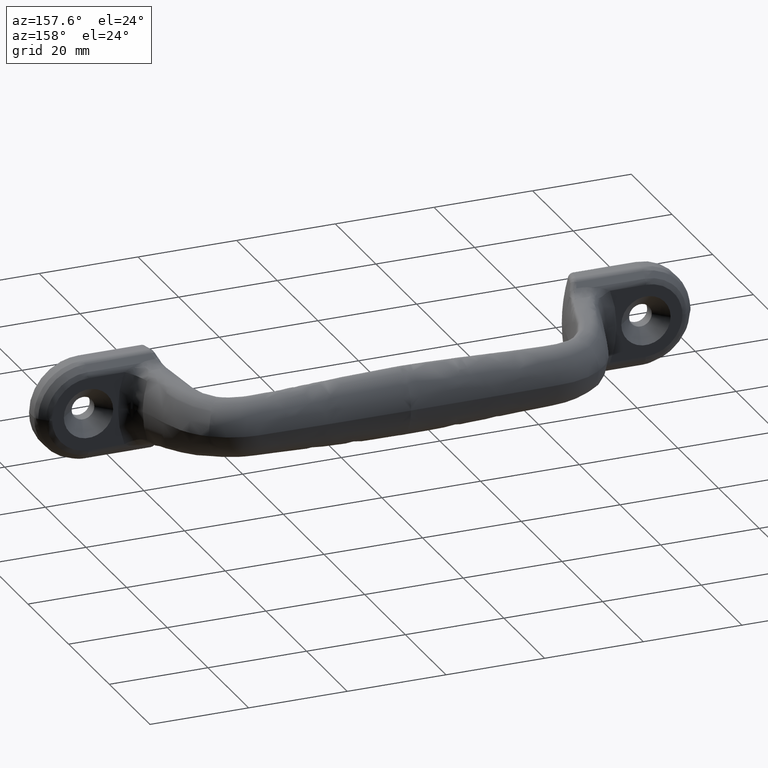
[diagram: clean part render]
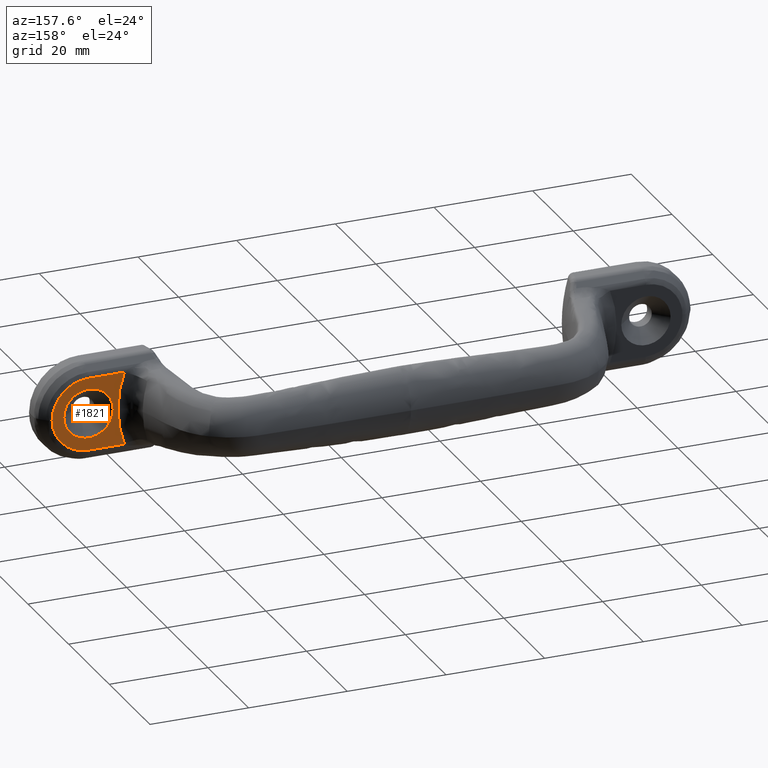
[diagram: same view with one face highlighted and labeled with its STEP entity id]
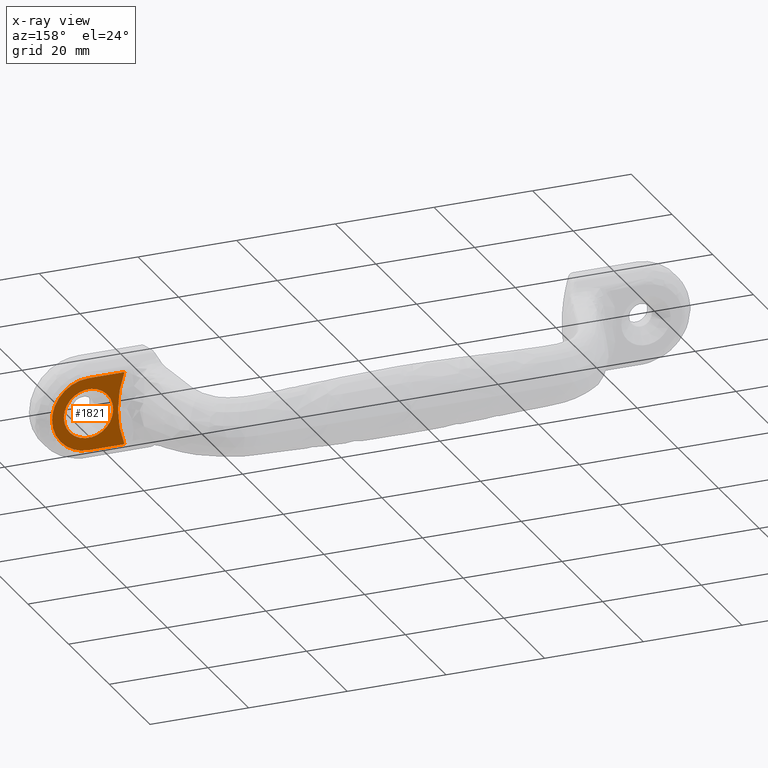
[diagram: x-ray of the same camera — body ghosted, the highlighted face saturated]
A machine part, auxiliary view. The second image highlights one B-rep face of the part: STEP entity #1821.
The next image is the same camera in x-ray: the body ghosted, the highlighted face saturated — about 0% of this face is hidden behind the body in this view.
In plain terms, the highlighted planar face has unit normal (0, 1, 0).
Its self-contained STEP definition (entity closure, byte-faithful):
#42=PLANE('',#1884);
#75=LINE('',#15127,#127);
#76=LINE('',#16140,#128);
#77=LINE('',#16750,#129);
#78=LINE('',#16860,#130);
#127=VECTOR('',#1982,0.0620688628684279);
#128=VECTOR('',#1983,0.0620688628684283);
#129=VECTOR('',#1986,7.27121803988808);
#130=VECTOR('',#1987,7.27121804460971);
#293=B_SPLINE_CURVE_WITH_KNOTS('',3,(#15129,#15130,#15131,#15132,#15133,
#15134,#15135,#15136,#15137,#15138,#15139,#15140,#15141,#15142,#15143,#15144,
#15145,#15146,#15147,#15148,#15149,#15150,#15151,#15152,#15153,#15154,#15155,
#15156,#15157,#15158,#15159,#15160,#15161,#15162,#15163,#15164,#15165,#15166,
#15167,#15168,#15169,#15170,#15171,#15172,#15173,#15174,#15175,#15176,#15177),
 .UNSPECIFIED.,.F.,.F.,(4,3,3,3,3,3,3,3,3,3,3,3,3,3,3,3,4),(0.,0.0185041713225097,
0.0556354328315497,0.0954989764310041,0.124999999964289,0.131733220072823,
0.165305748314338,0.246093749929689,0.249999999928572,0.260306895702468,
0.468749999865934,0.499999999856984,0.758737155232292,0.898763433290219,
0.932708410075183,0.966319131039416,0.999999999713804),.UNSPECIFIED.);
#308=B_SPLINE_CURVE_WITH_KNOTS('',3,(#16106,#16107,#16108,#16109,#16110,
#16111,#16112,#16113,#16114,#16115,#16116,#16117,#16118,#16119,#16120,#16121,
#16122,#16123,#16124,#16125,#16126,#16127,#16128,#16129,#16130,#16131,#16132,
#16133,#16134,#16135,#16136,#16137,#16138,#16139),.UNSPECIFIED.,.F.,.F.,
(4,3,3,3,3,3,3,3,3,3,3,4),(0.,0.0168691644288512,0.0489990711802318,0.0840030308831241,
0.119458514656588,0.15473895051435,0.260260710457776,0.753397035694499,
0.894168888157413,0.929194940019406,0.964317406343073,0.999999999694593),
 .UNSPECIFIED.);
#321=B_SPLINE_CURVE_WITH_KNOTS('',3,(#16752,#16753,#16754,#16755,#16756,
#16757,#16758,#16759,#16760,#16761,#16762,#16763,#16764,#16765,#16766,#16767,
#16768,#16769,#16770,#16771,#16772,#16773,#16774,#16775,#16776,#16777,#16778,
#16779,#16780,#16781,#16782,#16783,#16784,#16785,#16786,#16787,#16788,#16789,
#16790,#16791,#16792,#16793,#16794,#16795,#16796,#16797,#16798,#16799,#16800,
#16801,#16802,#16803),.UNSPECIFIED.,.F.,.F.,(4,3,3,3,3,3,3,3,3,3,3,3,3,
3,3,3,3,4),(0.000833106760737374,0.00490726464856456,0.0147996396251551,
0.0447172937709635,0.0655590373653386,0.0865032987265728,0.250000068000261,
0.32236820171071,0.468750048166831,0.500000045333484,0.621562680765731,
0.687500028333432,0.750000022666747,0.876464520168464,0.951449996910995,
0.962121846081665,0.983403426761849,1.),.UNSPECIFIED.);
#322=B_SPLINE_CURVE_WITH_KNOTS('',3,(#16805,#16806,#16807,#16808,#16809,
#16810,#16811,#16812,#16813,#16814,#16815,#16816,#16817,#16818,#16819,#16820,
#16821,#16822,#16823,#16824,#16825,#16826,#16827,#16828,#16829,#16830,#16831,
#16832,#16833,#16834,#16835,#16836,#16837,#16838,#16839,#16840,#16841,#16842,
#16843,#16844,#16845,#16846,#16847,#16848,#16849,#16850,#16851,#16852,#16853,
#16854,#16855,#16856,#16857,#16858,#16859),.UNSPECIFIED.,.F.,.F.,(4,3,3,
3,3,3,3,3,3,3,3,3,3,3,3,3,3,3,4),(0.,0.0166002639515077,0.0378731155142542,
0.0485370083063361,0.1234885083687,0.124999988583741,0.187499982875611,
0.249999977167482,0.378508557630454,0.46874995718902,0.499999954334946,
0.677517336115743,0.90351836781476,0.914151571758031,0.934953611163284,
0.955583810999677,0.985242921622856,0.995097704780354,0.99916714172912),
 .UNSPECIFIED.);
#457=FACE_BOUND('',#624,.T.);
#521=FACE_OUTER_BOUND('',#623,.T.);
#623=EDGE_LOOP('',(#1559,#1560,#1561,#1562,#1563,#1564,#1565,#1566));
#624=EDGE_LOOP('',(#1567));
#662=CIRCLE('',#1863,5.);
#670=VERTEX_POINT('',#2047);
#802=VERTEX_POINT('',#15118);
#803=VERTEX_POINT('',#15126);
#804=VERTEX_POINT('',#15128);
#814=VERTEX_POINT('',#16094);
#815=VERTEX_POINT('',#16105);
#825=VERTEX_POINT('',#16749);
#826=VERTEX_POINT('',#16751);
#827=VERTEX_POINT('',#16804);
#875=EDGE_CURVE('',#670,#670,#662,.T.);
#1057=EDGE_CURVE('',#803,#802,#75,.T.);
#1058=EDGE_CURVE('',#804,#803,#293,.T.);
#1073=EDGE_CURVE('',#814,#815,#308,.T.);
#1074=EDGE_CURVE('',#815,#802,#76,.T.);
#1087=EDGE_CURVE('',#814,#825,#77,.T.);
#1088=EDGE_CURVE('',#825,#826,#321,.T.);
#1089=EDGE_CURVE('',#826,#827,#322,.T.);
#1090=EDGE_CURVE('',#827,#804,#78,.T.);
#1559=ORIENTED_EDGE('',*,*,#1073,.F.);
#1560=ORIENTED_EDGE('',*,*,#1087,.T.);
#1561=ORIENTED_EDGE('',*,*,#1088,.T.);
#1562=ORIENTED_EDGE('',*,*,#1089,.T.);
#1563=ORIENTED_EDGE('',*,*,#1090,.T.);
#1564=ORIENTED_EDGE('',*,*,#1058,.T.);
#1565=ORIENTED_EDGE('',*,*,#1057,.T.);
#1566=ORIENTED_EDGE('',*,*,#1074,.F.);
#1567=ORIENTED_EDGE('',*,*,#875,.T.);
#1821=ADVANCED_FACE('',(#521,#457),#42,.T.);
#1863=AXIS2_PLACEMENT_3D('',#2048,#1913,#1914);
#1884=AXIS2_PLACEMENT_3D('',#16748,#1984,#1985);
#1913=DIRECTION('center_axis',(0.,-1.,0.));
#1914=DIRECTION('ref_axis',(0.999999395314834,0.,0.00109971358366082));
#1982=DIRECTION('',(-0.000448015092091155,0.,0.999999899641234));
#1983=DIRECTION('',(-0.000448015092091155,0.,-0.999999899641234));
#1984=DIRECTION('center_axis',(0.,1.,0.));
#1985=DIRECTION('ref_axis',(0.,0.,1.));
#1986=DIRECTION('',(1.,0.,0.));
#1987=DIRECTION('',(-1.,0.,0.));
#2047=CARTESIAN_POINT('',(511.499934887743,-71.5,0.129766202871977));
#2048=CARTESIAN_POINT('Origin',(506.499937911169,-71.5,0.124267634953673));
#15118=CARTESIAN_POINT('',(500.521181632373,-71.5,0.));
#15126=CARTESIAN_POINT('',(500.521209439832,-71.5,-0.0620688566394208));
#15127=CARTESIAN_POINT('',(500.521209439787,-71.5,-0.0620688558535731));
#15128=CARTESIAN_POINT('',(499.216150672765,-71.5000055036741,-7.38678069944423));
#15129=CARTESIAN_POINT('Ctrl Pts',(499.220260768411,-71.4999925230994,-7.37614538889611));
#15130=CARTESIAN_POINT('Ctrl Pts',(499.236893615072,-71.4999947404254,-7.33628171961173));
#15131=CARTESIAN_POINT('Ctrl Pts',(499.259140963759,-71.4999961853844,-7.27977983028135));
#15132=CARTESIAN_POINT('Ctrl Pts',(499.277473809222,-71.4999971499502,-7.23232016536948));
#15133=CARTESIAN_POINT('Ctrl Pts',(499.314261280935,-71.4999990854893,-7.13708557213859));
#15134=CARTESIAN_POINT('Ctrl Pts',(499.336816666026,-71.4999993660644,-7.07432136734971));
#15135=CARTESIAN_POINT('Ctrl Pts',(499.361682430598,-71.4999996373762,-7.00404908206117));
#15136=CARTESIAN_POINT('Ctrl Pts',(499.388377927866,-71.4999999286523,-6.92860585189375));
#15137=CARTESIAN_POINT('Ctrl Pts',(499.417450183042,-71.4999999706129,-6.84519850282074));
#15138=CARTESIAN_POINT('Ctrl Pts',(499.446741501301,-71.4999999890252,-6.7583617059303));
#15139=CARTESIAN_POINT('Ctrl Pts',(499.468418547324,-71.5000000026513,-6.6940981167632));
#15140=CARTESIAN_POINT('Ctrl Pts',(499.490111175772,-71.5,-6.62820603726764));
#15141=CARTESIAN_POINT('Ctrl Pts',(499.512928480829,-71.5,-6.55734648919316));
#15142=CARTESIAN_POINT('Ctrl Pts',(499.518136230216,-71.5,-6.54117373052808));
#15143=CARTESIAN_POINT('Ctrl Pts',(499.523344628576,-71.5,-6.52493128689928));
#15144=CARTESIAN_POINT('Ctrl Pts',(499.528563108584,-71.5,-6.50859351665894));
#15145=CARTESIAN_POINT('Ctrl Pts',(499.554582986833,-71.5,-6.42713171324903));
#15146=CARTESIAN_POINT('Ctrl Pts',(499.580861754413,-71.5,-6.34328210219355));
#15147=CARTESIAN_POINT('Ctrl Pts',(499.607022303003,-71.5,-6.2577818275993));
#15148=CARTESIAN_POINT('Ctrl Pts',(499.669974322183,-71.5,-6.05203633615633));
#15149=CARTESIAN_POINT('Ctrl Pts',(499.732222982691,-71.5,-5.83686094462508));
#15150=CARTESIAN_POINT('Ctrl Pts',(499.793772875689,-71.5,-5.6087464713112));
#15151=CARTESIAN_POINT('Ctrl Pts',(499.796748927388,-71.5,-5.5977167126427));
#15152=CARTESIAN_POINT('Ctrl Pts',(499.800196172251,-71.4999999999929,-5.58489091833627));
#15153=CARTESIAN_POINT('Ctrl Pts',(499.802692832112,-71.4999999999931,-5.5755759903231));
#15154=CARTESIAN_POINT('Ctrl Pts',(499.809280432237,-71.4999999999934,-5.55099794431975));
#15155=CARTESIAN_POINT('Ctrl Pts',(499.815823119839,-71.4999999999937,-5.5264050136222));
#15156=CARTESIAN_POINT('Ctrl Pts',(499.822321325063,-71.499999999994,-5.5017962524856));
#15157=CARTESIAN_POINT('Ctrl Pts',(499.953738785579,-71.5000000000001,-5.00411715749359));
#15158=CARTESIAN_POINT('Ctrl Pts',(500.067002300038,-71.4999999999997,-4.49996582001297));
#15159=CARTESIAN_POINT('Ctrl Pts',(500.162038879295,-71.4999999999447,-3.98938105539846));
#15160=CARTESIAN_POINT('Ctrl Pts',(500.176286858919,-71.4999999999364,-3.91283367354254));
#15161=CARTESIAN_POINT('Ctrl Pts',(500.190429452439,-71.4999999999452,-3.8344004893083));
#15162=CARTESIAN_POINT('Ctrl Pts',(500.203551895823,-71.4999999999483,-3.75930356475012));
#15163=CARTESIAN_POINT('Ctrl Pts',(500.312200333383,-71.4999999999737,-3.13753189616828));
#15164=CARTESIAN_POINT('Ctrl Pts',(500.391885581144,-71.4999999999871,-2.52222844295426));
#15165=CARTESIAN_POINT('Ctrl Pts',(500.445581308252,-71.4999999999937,-1.89070250374391));
#15166=CARTESIAN_POINT('Ctrl Pts',(500.47464096458,-71.4999999999974,-1.54892620711426));
#15167=CARTESIAN_POINT('Ctrl Pts',(500.4959438965,-71.4999999999989,-1.20244875053218));
#15168=CARTESIAN_POINT('Ctrl Pts',(500.508328710507,-71.4999999999996,-0.843839958274151));
#15169=CARTESIAN_POINT('Ctrl Pts',(500.511331020001,-71.4999999999997,-0.756906510517674));
#15170=CARTESIAN_POINT('Ctrl Pts',(500.513804768648,-71.4999999999998,-0.669249599752155));
#15171=CARTESIAN_POINT('Ctrl Pts',(500.515724918914,-71.4999999999999,-0.581785745906542));
#15172=CARTESIAN_POINT('Ctrl Pts',(500.51762616148,-71.5,-0.495183147687544));
#15173=CARTESIAN_POINT('Ctrl Pts',(500.518984141758,-71.5,-0.408779883546288));
#15174=CARTESIAN_POINT('Ctrl Pts',(500.51985009542,-71.5,-0.321873297705523));
#15175=CARTESIAN_POINT('Ctrl Pts',(500.520717856382,-71.5,-0.234785332298382));
#15176=CARTESIAN_POINT('Ctrl Pts',(500.521090127741,-71.5,-0.147165554599191));
#15177=CARTESIAN_POINT('Ctrl Pts',(500.521209439786,-71.5,-0.0620688566393566));
#16094=CARTESIAN_POINT('',(499.216132479807,-71.5000055558255,7.38682478552348));
#16105=CARTESIAN_POINT('',(500.521209439832,-71.5,0.0620688566394211));
#16106=CARTESIAN_POINT('Ctrl Pts',(499.220260768412,-71.4999925230994,7.37614538889631));
#16107=CARTESIAN_POINT('Ctrl Pts',(499.243766716277,-71.5000063641938,7.33507636524897));
#16108=CARTESIAN_POINT('Ctrl Pts',(499.263715086811,-71.5,7.28285022555765));
#16109=CARTESIAN_POINT('Ctrl Pts',(499.281867447292,-71.5,7.23391343311121));
#16110=CARTESIAN_POINT('Ctrl Pts',(499.316441397415,-71.5,7.14070581843371));
#16111=CARTESIAN_POINT('Ctrl Pts',(499.33874320259,-71.5,7.07585191370177));
#16112=CARTESIAN_POINT('Ctrl Pts',(499.363212407966,-71.5,7.00458036223692));
#16113=CARTESIAN_POINT('Ctrl Pts',(499.389870408737,-71.5,6.92693349775199));
#16114=CARTESIAN_POINT('Ctrl Pts',(499.419100904448,-71.5,6.84166950572905));
#16115=CARTESIAN_POINT('Ctrl Pts',(499.446952062383,-71.5,6.75843191184488));
#16116=CARTESIAN_POINT('Ctrl Pts',(499.475162478765,-71.5,6.67412061722702));
#16117=CARTESIAN_POINT('Ctrl Pts',(499.501957743077,-71.5,6.59188833586534));
#16118=CARTESIAN_POINT('Ctrl Pts',(499.528563108584,-71.5,6.50859351665894));
#16119=CARTESIAN_POINT('Ctrl Pts',(499.555037120255,-71.5,6.42570993382387));
#16120=CARTESIAN_POINT('Ctrl Pts',(499.581323103599,-71.5,6.34177427899454));
#16121=CARTESIAN_POINT('Ctrl Pts',(499.607022303003,-71.5,6.25778182759928));
#16122=CARTESIAN_POINT('Ctrl Pts',(499.683887134301,-71.5,6.00656522333386));
#16123=CARTESIAN_POINT('Ctrl Pts',(499.755502750292,-71.5,5.75484053187741));
#16124=CARTESIAN_POINT('Ctrl Pts',(499.822321612348,-71.5,5.50179632842148));
#16125=CARTESIAN_POINT('Ctrl Pts',(500.134587140412,-71.5,4.31924129255392));
#16126=CARTESIAN_POINT('Ctrl Pts',(500.34209221308,-71.5,3.10786829357114));
#16127=CARTESIAN_POINT('Ctrl Pts',(500.445581592611,-71.5,1.89070252787435));
#16128=CARTESIAN_POINT('Ctrl Pts',(500.475123913712,-71.5,1.54324753252529));
#16129=CARTESIAN_POINT('Ctrl Pts',(500.496190125877,-71.5,1.19532049185088));
#16130=CARTESIAN_POINT('Ctrl Pts',(500.508328731638,-71.5,0.843839959009589));
#16131=CARTESIAN_POINT('Ctrl Pts',(500.511348990499,-71.5,0.756386571443895));
#16132=CARTESIAN_POINT('Ctrl Pts',(500.513816554079,-71.5,0.668713192285514));
#16133=CARTESIAN_POINT('Ctrl Pts',(500.515724925127,-71.5,0.581785746242174));
#16134=CARTESIAN_POINT('Ctrl Pts',(500.517638549253,-71.5,0.494619019364442));
#16135=CARTESIAN_POINT('Ctrl Pts',(500.518989898088,-71.5,0.408202337839338));
#16136=CARTESIAN_POINT('Ctrl Pts',(500.519850096192,-71.5,0.321873299014886));
#16137=CARTESIAN_POINT('Ctrl Pts',(500.520724012588,-71.5,0.234167499586879));
#16138=CARTESIAN_POINT('Ctrl Pts',(500.521090987756,-71.5,0.146552162740348));
#16139=CARTESIAN_POINT('Ctrl Pts',(500.521209439786,-71.5,0.0620688566393569));
#16140=CARTESIAN_POINT('',(500.521181632,-71.5,0.));
#16748=CARTESIAN_POINT('Origin',(499.138892509,-71.5,-7.467430967));
#16749=CARTESIAN_POINT('',(506.489581148702,-71.5,7.37878200431356));
#16750=CARTESIAN_POINT('',(506.5534626985,-71.5,7.37867965386549));
#16751=CARTESIAN_POINT('',(513.87868554405,-71.5000000003804,1.25084677019451E-8));
#16752=CARTESIAN_POINT('Ctrl Pts',(506.489582281254,-71.5000000118499,7.37878198223474));
#16753=CARTESIAN_POINT('Ctrl Pts',(506.506560289847,-71.5000000116055,7.37845102715856));
#16754=CARTESIAN_POINT('Ctrl Pts',(506.524554421784,-71.5000000114017,7.37807368106756));
#16755=CARTESIAN_POINT('Ctrl Pts',(506.542251489251,-71.5000000112382,7.37769249560223));
#16756=CARTESIAN_POINT('Ctrl Pts',(506.585221357429,-71.5000000108413,7.37676694738773));
#16757=CARTESIAN_POINT('Ctrl Pts',(506.626439642424,-71.5000000106799,7.37581860249843));
#16758=CARTESIAN_POINT('Ctrl Pts',(506.667513387992,-71.5000000107658,7.37473040034245));
#16759=CARTESIAN_POINT('Ctrl Pts',(506.791733316703,-71.5000000110255,7.37143933466606));
#16760=CARTESIAN_POINT('Ctrl Pts',(506.914597901921,-71.500000013247,7.36686265036571));
#16761=CARTESIAN_POINT('Ctrl Pts',(507.03292540323,-71.5000000199877,7.35911355762886));
#16762=CARTESIAN_POINT('Ctrl Pts',(507.115356713868,-71.5000000246836,7.35371525323229));
#16763=CARTESIAN_POINT('Ctrl Pts',(507.195602460648,-71.5000000316251,7.34678059447014));
#16764=CARTESIAN_POINT('Ctrl Pts',(507.276997981773,-71.5000000432022,7.33813557200144));
#16765=CARTESIAN_POINT('Ctrl Pts',(507.35879387665,-71.5000000548362,7.32944802581615));
#16766=CARTESIAN_POINT('Ctrl Pts',(507.441736224519,-71.5000000711104,7.31903500642981));
#16767=CARTESIAN_POINT('Ctrl Pts',(507.524176930836,-71.500000096328,7.30732194784875));
#16768=CARTESIAN_POINT('Ctrl Pts',(508.167732170477,-71.500000293183,7.21588653252008));
#16769=CARTESIAN_POINT('Ctrl Pts',(508.78062407833,-71.4999994987884,7.04537855788715));
#16770=CARTESIAN_POINT('Ctrl Pts',(509.35104091346,-71.5000083644373,6.81014752923602));
#16771=CARTESIAN_POINT('Ctrl Pts',(509.603522977655,-71.5000122886155,6.70602785390607));
#16772=CARTESIAN_POINT('Ctrl Pts',(509.848672939544,-71.5000136576045,6.5875564981314));
#16773=CARTESIAN_POINT('Ctrl Pts',(510.086770290505,-71.5000123503696,6.45482295707383));
#16774=CARTESIAN_POINT('Ctrl Pts',(510.56837908823,-71.5000097061744,6.1863376468901));
#16775=CARTESIAN_POINT('Ctrl Pts',(511.021660529187,-71.5000010872575,5.86016236197255));
#16776=CARTESIAN_POINT('Ctrl Pts',(511.445188022254,-71.5000001843067,5.47524982756778));
#16777=CARTESIAN_POINT('Ctrl Pts',(511.53560383049,-71.4999999915423,5.39307764638025));
#16778=CARTESIAN_POINT('Ctrl Pts',(511.625710469023,-71.4999999999572,5.30724902514751));
#16779=CARTESIAN_POINT('Ctrl Pts',(511.712455346976,-71.5000000010642,5.22076741589817));
#16780=CARTESIAN_POINT('Ctrl Pts',(512.049893328742,-71.5000000053705,4.88435355061982));
#16781=CARTESIAN_POINT('Ctrl Pts',(512.349457296227,-71.5000001033739,4.5225383996907));
#16782=CARTESIAN_POINT('Ctrl Pts',(512.611539121722,-71.5000001629306,4.13579965334451));
#16783=CARTESIAN_POINT('Ctrl Pts',(512.753696128744,-71.5000001952351,3.92602691318425));
#16784=CARTESIAN_POINT('Ctrl Pts',(512.884747288413,-71.5000001787167,3.70883341388577));
#16785=CARTESIAN_POINT('Ctrl Pts',(513.004666364631,-71.5000001053036,3.48417428443279));
#16786=CARTESIAN_POINT('Ctrl Pts',(513.118333987922,-71.5000000357175,3.27122676931895));
#16787=CARTESIAN_POINT('Ctrl Pts',(513.221483193876,-71.4999999998476,3.05300625159799));
#16788=CARTESIAN_POINT('Ctrl Pts',(513.315776567151,-71.5000000020807,2.8253463063856));
#16789=CARTESIAN_POINT('Ctrl Pts',(513.506572809554,-71.5000000065992,2.36469185545863));
#16790=CARTESIAN_POINT('Ctrl Pts',(513.647307913221,-71.5000000063529,1.89516127207049));
#16791=CARTESIAN_POINT('Ctrl Pts',(513.74075928491,-71.5000000044616,1.41862417087912));
#16792=CARTESIAN_POINT('Ctrl Pts',(513.796170058659,-71.5000000033402,1.1360677030621));
#16793=CARTESIAN_POINT('Ctrl Pts',(513.834840418599,-71.5000000019481,0.850966505624585));
#16794=CARTESIAN_POINT('Ctrl Pts',(513.856937258251,-71.5000000011366,0.563114966454948));
#16795=CARTESIAN_POINT('Ctrl Pts',(513.860082055752,-71.5000000010211,0.522148257393256));
#16796=CARTESIAN_POINT('Ctrl Pts',(513.862889735448,-71.5000000009164,0.48112576999406));
#16797=CARTESIAN_POINT('Ctrl Pts',(513.865364175349,-71.5000000008239,0.439941436995999));
#16798=CARTESIAN_POINT('Ctrl Pts',(513.870298652171,-71.5000000006395,0.357812492757669));
#16799=CARTESIAN_POINT('Ctrl Pts',(513.873908335905,-71.5000000005039,0.275036728158956));
#16800=CARTESIAN_POINT('Ctrl Pts',(513.876149171952,-71.5000000004303,0.19328729123665));
#16801=CARTESIAN_POINT('Ctrl Pts',(513.877896701899,-71.5000000003729,0.129534483705679));
#16802=CARTESIAN_POINT('Ctrl Pts',(513.878811936003,-71.500000000353,0.0664110685444909));
#16803=CARTESIAN_POINT('Ctrl Pts',(513.878685524577,-71.5000000003785,0.00193242151633973));
#16804=CARTESIAN_POINT('',(506.489581148702,-71.5000000033789,-7.37878200431333));
#16805=CARTESIAN_POINT('Ctrl Pts',(513.878685524577,-71.5000000003785,-0.00193242151633969));
#16806=CARTESIAN_POINT('Ctrl Pts',(513.87881161805,-71.5000000003275,-0.0663880915215369));
#16807=CARTESIAN_POINT('Ctrl Pts',(513.877939142817,-71.5000000030782,-0.129514009604049));
#16808=CARTESIAN_POINT('Ctrl Pts',(513.876263418053,-71.5000000155738,-0.193290413045701));
#16809=CARTESIAN_POINT('Ctrl Pts',(513.874116015803,-71.5000000315868,-0.27501838843111));
#16810=CARTESIAN_POINT('Ctrl Pts',(513.870649244784,-71.5000000656726,-0.357807216884173));
#16811=CARTESIAN_POINT('Ctrl Pts',(513.865879634274,-71.50000014079,-0.439972447124241));
#16812=CARTESIAN_POINT('Ctrl Pts',(513.863488670609,-71.5000001784456,-0.481161152076766));
#16813=CARTESIAN_POINT('Ctrl Pts',(513.860770236652,-71.5000002262729,-0.522193890936071));
#16814=CARTESIAN_POINT('Ctrl Pts',(513.857717166826,-71.5000002850337,-0.563174818790312));
#16815=CARTESIAN_POINT('Ctrl Pts',(513.83625857119,-71.5000006980359,-0.85121053675098));
#16816=CARTESIAN_POINT('Ctrl Pts',(513.798307819606,-71.5000019163544,-1.1367288311593));
#16817=CARTESIAN_POINT('Ctrl Pts',(513.742763122534,-71.5000016571781,-1.41901948869421));
#16818=CARTESIAN_POINT('Ctrl Pts',(513.741643002049,-71.5000016519516,-1.4247121932218));
#16819=CARTESIAN_POINT('Ctrl Pts',(513.740515711545,-71.5000016461408,-1.43040356540225));
#16820=CARTESIAN_POINT('Ctrl Pts',(513.739381245905,-71.5000016397417,-1.43609359506565));
#16821=CARTESIAN_POINT('Ctrl Pts',(513.692470875986,-71.5000013751371,-1.67137740357619));
#16822=CARTESIAN_POINT('Ctrl Pts',(513.633713668689,-71.5000007962277,-1.9047896859749));
#16823=CARTESIAN_POINT('Ctrl Pts',(513.56310962285,-71.5000004281702,-2.13633044194427));
#16824=CARTESIAN_POINT('Ctrl Pts',(513.49250557701,-71.5000000601127,-2.36787119791364));
#16825=CARTESIAN_POINT('Ctrl Pts',(513.409356361764,-71.4999999998482,-2.5992986302479));
#16826=CARTESIAN_POINT('Ctrl Pts',(513.315776522902,-71.5000000020756,-2.82534628792462));
#16827=CARTESIAN_POINT('Ctrl Pts',(513.123363509294,-71.5000000066555,-3.29013134805373));
#16828=CARTESIAN_POINT('Ctrl Pts',(512.888283817901,-71.5000000589879,-3.72672113170651));
#16829=CARTESIAN_POINT('Ctrl Pts',(512.611380826589,-71.5000000838214,-4.13569217631168));
#16830=CARTESIAN_POINT('Ctrl Pts',(512.416933783537,-71.5000001012601,-4.42288015481973));
#16831=CARTESIAN_POINT('Ctrl Pts',(512.201674378459,-71.500000067316,-4.69642268249109));
#16832=CARTESIAN_POINT('Ctrl Pts',(511.965407217961,-71.5000000199813,-4.95602233436553));
#16833=CARTESIAN_POINT('Ctrl Pts',(511.883589469927,-71.5000000035896,-5.04591996915227));
#16834=CARTESIAN_POINT('Ctrl Pts',(511.800175316242,-71.4999999999452,-5.13328167189928));
#16835=CARTESIAN_POINT('Ctrl Pts',(511.712456398566,-71.5000000012111,-5.22076846834006));
#16836=CARTESIAN_POINT('Ctrl Pts',(511.214164109904,-71.5000000084023,-5.71774217915464));
#16837=CARTESIAN_POINT('Ctrl Pts',(510.668376232078,-71.5000000525411,-6.12506495517795));
#16838=CARTESIAN_POINT('Ctrl Pts',(510.084117032222,-71.5000001128516,-6.45005486173244));
#16839=CARTESIAN_POINT('Ctrl Pts',(509.340284621996,-71.5000001896341,-6.86380619941145));
#16840=CARTESIAN_POINT('Ctrl Pts',(508.532800950784,-71.5000001553124,-7.14731740110608));
#16841=CARTESIAN_POINT('Ctrl Pts',(507.649500599243,-71.5000000351856,-7.28813899636422));
#16842=CARTESIAN_POINT('Ctrl Pts',(507.607941882849,-71.5000000295337,-7.29476456232177));
#16843=CARTESIAN_POINT('Ctrl Pts',(507.566146391594,-71.500000025081,-7.30107560994185));
#16844=CARTESIAN_POINT('Ctrl Pts',(507.52413974921,-71.5000000214583,-7.30705976215405));
#16845=CARTESIAN_POINT('Ctrl Pts',(507.441960959562,-71.5000000143712,-7.31876672938512));
#16846=CARTESIAN_POINT('Ctrl Pts',(507.358965140064,-71.5000000103873,-7.3292233504334));
#16847=CARTESIAN_POINT('Ctrl Pts',(507.276978830116,-71.5000000078054,-7.33795758539725));
#16848=CARTESIAN_POINT('Ctrl Pts',(507.195669785116,-71.5000000052448,-7.34661966939833));
#16849=CARTESIAN_POINT('Ctrl Pts',(507.11537396975,-71.500000004091,-7.35358471541993));
#16850=CARTESIAN_POINT('Ctrl Pts',(507.032918387876,-71.5000000036899,-7.35900615941214));
#16851=CARTESIAN_POINT('Ctrl Pts',(506.91437570561,-71.5000000031131,-7.36680032565278));
#16852=CARTESIAN_POINT('Ctrl Pts',(506.791333716245,-71.5000000040666,-7.37139941569682));
#16853=CARTESIAN_POINT('Ctrl Pts',(506.667512624092,-71.5000000067475,-7.37470198440394));
#16854=CARTESIAN_POINT('Ctrl Pts',(506.626370796578,-71.5000000076383,-7.37579932339313));
#16855=CARTESIAN_POINT('Ctrl Pts',(506.585143231487,-71.5000000087333,-7.37675440595035));
#16856=CARTESIAN_POINT('Ctrl Pts',(506.542251324549,-71.500000010069,-7.37768472480935));
#16857=CARTESIAN_POINT('Ctrl Pts',(506.524539528348,-71.5000000106207,-7.37806889094254));
#16858=CARTESIAN_POINT('Ctrl Pts',(506.506545640205,-71.5000000112134,-7.37844879247953));
#16859=CARTESIAN_POINT('Ctrl Pts',(506.489582289878,-71.5000000118499,-7.3787819818971));
#16860=CARTESIAN_POINT('',(506.5534626985,-71.5,-7.37867965386549));